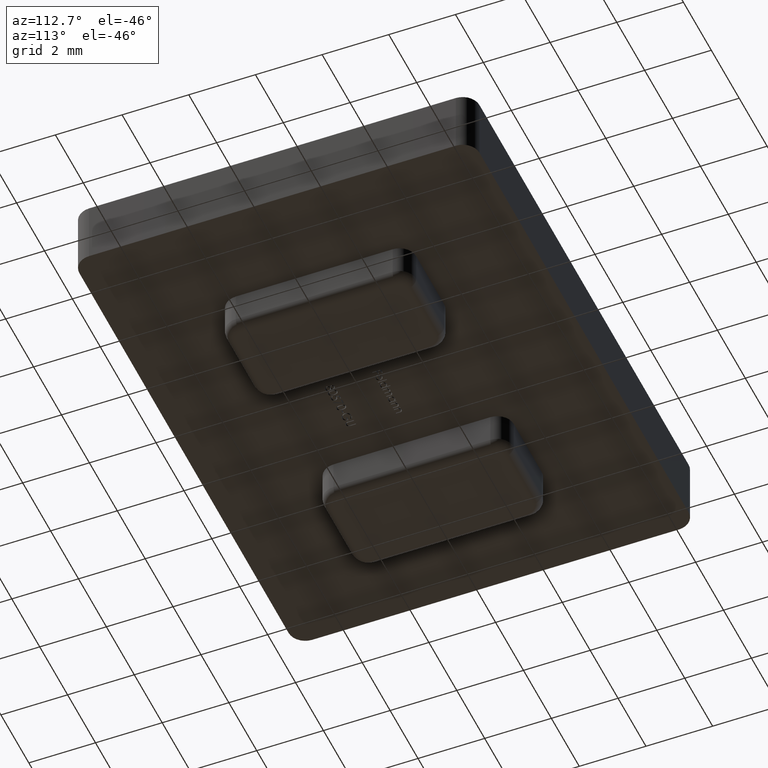
[diagram: clean part render]
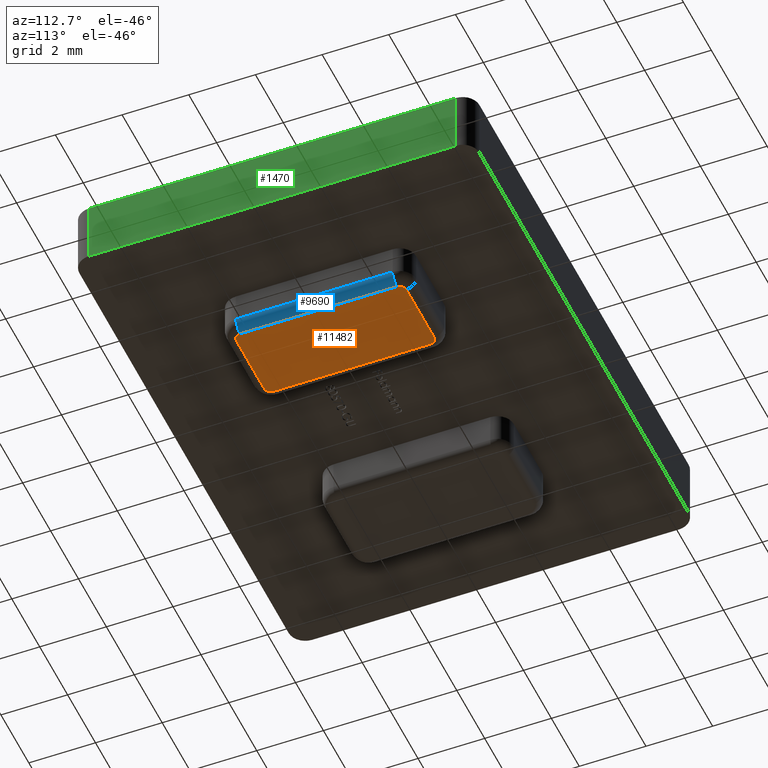
[diagram: same view with three faces highlighted in distinct colors, each labeled with its STEP entity id]
A machine part, auxiliary view with three faces highlighted in distinct colors.
Their STEP definitions:

[orange] entity #11482 — the highlighted planar face has unit normal (0, 0, -1).
#98 = EDGE_CURVE ( 'NONE', #12104, #6835, #5290, .T. ) ;
#335 = EDGE_CURVE ( 'NONE', #10522, #11056, #3748, .T. ) ;
#530 = CARTESIAN_POINT ( 'NONE',  ( 2.500000000000000000, -2.349999999999999600, -1.200000000000000000 ) ) ;
#936 = DIRECTION ( 'NONE',  ( 0.0000000000000000000, 0.0000000000000000000, -1.000000000000000000 ) ) ;
#1188 = LINE ( 'NONE', #5964, #12472 ) ;
#1249 = ORIENTED_EDGE ( 'NONE', *, *, #6526, .T. ) ;
#1545 = DIRECTION ( 'NONE',  ( 0.0000000000000000000, 0.0000000000000000000, -1.000000000000000000 ) ) ;
#1703 = VERTEX_POINT ( 'NONE', #4426 ) ;
#1711 = EDGE_CURVE ( 'NONE', #9247, #12104, #6130, .T. ) ;
#1778 = AXIS2_PLACEMENT_3D ( 'NONE', #2658, #10201, #3720 ) ;
#1887 = DIRECTION ( 'NONE',  ( -7.608436298143890100E-017, 1.000000000000000000, 0.0000000000000000000 ) ) ;
#2303 = CARTESIAN_POINT ( 'NONE',  ( 4.700000000000000200, -2.350000000000000100, -1.200000000000000000 ) ) ;
#2658 = CARTESIAN_POINT ( 'NONE',  ( 2.499999999999999600, 2.350000000000000100, -1.200000000000000000 ) ) ;
#3090 = CARTESIAN_POINT ( 'NONE',  ( 4.500000000000000900, 2.550000000000000300, -1.200000000000000000 ) ) ;
#3328 = EDGE_CURVE ( 'NONE', #11056, #7797, #10979, .T. ) ;
#3720 = DIRECTION ( 'NONE',  ( -1.000000000000000000, 0.0000000000000000000, 0.0000000000000000000 ) ) ;
#3748 = LINE ( 'NONE', #3990, #4095 ) ;
#3897 = CARTESIAN_POINT ( 'NONE',  ( 2.299999999999999800, 2.350000000000000100, -1.200000000000000000 ) ) ;
#3990 = CARTESIAN_POINT ( 'NONE',  ( 2.299999999999999800, 2.350000000000000100, -1.200000000000000000 ) ) ;
#4041 = EDGE_CURVE ( 'NONE', #6835, #6670, #8442, .T. ) ;
#4095 = VECTOR ( 'NONE', #1887, 1000.000000000000000 ) ;
#4281 = VECTOR ( 'NONE', #8402, 1000.000000000000000 ) ;
#4426 = CARTESIAN_POINT ( 'NONE',  ( 2.500000000000000000, -2.549999999999999800, -1.200000000000000000 ) ) ;
#4653 = ORIENTED_EDGE ( 'NONE', *, *, #3328, .T. ) ;
#4732 = AXIS2_PLACEMENT_3D ( 'NONE', #6504, #8722, #5522 ) ;
#4833 = DIRECTION ( 'NONE',  ( -1.000000000000000000, 0.0000000000000000000, 0.0000000000000000000 ) ) ;
#5290 = LINE ( 'NONE', #2303, #10704 ) ;
#5308 = CIRCLE ( 'NONE', #10187, 0.2000000000000000900 ) ;
#5522 = DIRECTION ( 'NONE',  ( -1.000000000000000000, 0.0000000000000000000, 0.0000000000000000000 ) ) ;
#5835 = DIRECTION ( 'NONE',  ( -1.000000000000000000, 0.0000000000000000000, 0.0000000000000000000 ) ) ;
#5920 = CARTESIAN_POINT ( 'NONE',  ( 2.499999999999999600, 2.550000000000000300, -1.200000000000000000 ) ) ;
#5964 = CARTESIAN_POINT ( 'NONE',  ( 2.500000000000000000, -2.549999999999999800, -1.200000000000000000 ) ) ;
#6130 = CIRCLE ( 'NONE', #4732, 0.1999999999999996500 ) ;
#6238 = CARTESIAN_POINT ( 'NONE',  ( 4.500000000000000900, 2.550000000000000300, -1.200000000000000000 ) ) ;
#6325 = LINE ( 'NONE', #6238, #4281 ) ;
#6504 = CARTESIAN_POINT ( 'NONE',  ( 4.500000000000000900, 2.349999999999999600, -1.200000000000000000 ) ) ;
#6526 = EDGE_CURVE ( 'NONE', #6670, #1703, #1188, .T. ) ;
#6670 = VERTEX_POINT ( 'NONE', #8503 ) ;
#6835 = VERTEX_POINT ( 'NONE', #11020 ) ;
#6920 = CARTESIAN_POINT ( 'NONE',  ( 0.0000000000000000000, 0.0000000000000000000, -1.200000000000000000 ) ) ;
#7042 = EDGE_LOOP ( 'NONE', ( #1249, #7216, #7665, #4653, #12068, #11419, #9981, #8330 ) ) ;
#7216 = ORIENTED_EDGE ( 'NONE', *, *, #12327, .T. ) ;
#7597 = CARTESIAN_POINT ( 'NONE',  ( 2.300000000000000300, -2.349999999999999600, -1.200000000000000000 ) ) ;
#7665 = ORIENTED_EDGE ( 'NONE', *, *, #335, .T. ) ;
#7797 = VERTEX_POINT ( 'NONE', #5920 ) ;
#7874 = PLANE ( 'NONE',  #7990 ) ;
#7990 = AXIS2_PLACEMENT_3D ( 'NONE', #6920, #1545, #9005 ) ;
#8330 = ORIENTED_EDGE ( 'NONE', *, *, #4041, .T. ) ;
#8402 = DIRECTION ( 'NONE',  ( 1.000000000000000000, -1.445602896647339200E-016, 0.0000000000000000000 ) ) ;
#8442 = CIRCLE ( 'NONE', #9791, 0.1999999999999996500 ) ;
#8503 = CARTESIAN_POINT ( 'NONE',  ( 4.500000000000000900, -2.549999999999999800, -1.200000000000000000 ) ) ;
#8533 = CARTESIAN_POINT ( 'NONE',  ( 4.500000000000000900, -2.349999999999999600, -1.200000000000000000 ) ) ;
#8722 = DIRECTION ( 'NONE',  ( 0.0000000000000000000, 0.0000000000000000000, -1.000000000000000000 ) ) ;
#9005 = DIRECTION ( 'NONE',  ( -1.000000000000000000, 0.0000000000000000000, -0.0000000000000000000 ) ) ;
#9247 = VERTEX_POINT ( 'NONE', #3090 ) ;
#9791 = AXIS2_PLACEMENT_3D ( 'NONE', #8533, #936, #10824 ) ;
#9981 = ORIENTED_EDGE ( 'NONE', *, *, #98, .T. ) ;
#10187 = AXIS2_PLACEMENT_3D ( 'NONE', #530, #12476, #4833 ) ;
#10201 = DIRECTION ( 'NONE',  ( 0.0000000000000000000, 0.0000000000000000000, -1.000000000000000000 ) ) ;
#10522 = VERTEX_POINT ( 'NONE', #7597 ) ;
#10704 = VECTOR ( 'NONE', #10934, 1000.000000000000000 ) ;
#10824 = DIRECTION ( 'NONE',  ( -1.000000000000000000, 0.0000000000000000000, 0.0000000000000000000 ) ) ;
#10934 = DIRECTION ( 'NONE',  ( 0.0000000000000000000, -1.000000000000000000, 0.0000000000000000000 ) ) ;
#10979 = CIRCLE ( 'NONE', #1778, 0.2000000000000000900 ) ;
#11020 = CARTESIAN_POINT ( 'NONE',  ( 4.700000000000000200, -2.349999999999999600, -1.200000000000000000 ) ) ;
#11056 = VERTEX_POINT ( 'NONE', #3897 ) ;
#11266 = EDGE_CURVE ( 'NONE', #7797, #9247, #6325, .T. ) ;
#11419 = ORIENTED_EDGE ( 'NONE', *, *, #1711, .T. ) ;
#11482 = ADVANCED_FACE ( 'NONE', ( #13437 ), #7874, .T. ) ;
#11749 = CARTESIAN_POINT ( 'NONE',  ( 4.700000000000000200, 2.349999999999999600, -1.200000000000000000 ) ) ;
#12068 = ORIENTED_EDGE ( 'NONE', *, *, #11266, .T. ) ;
#12104 = VERTEX_POINT ( 'NONE', #11749 ) ;
#12327 = EDGE_CURVE ( 'NONE', #1703, #10522, #5308, .T. ) ;
#12472 = VECTOR ( 'NONE', #5835, 1000.000000000000000 ) ;
#12476 = DIRECTION ( 'NONE',  ( 0.0000000000000000000, 0.0000000000000000000, -1.000000000000000000 ) ) ;
#13437 = FACE_OUTER_BOUND ( 'NONE', #7042, .T. ) ;

[blue] entity #9690 — the highlighted cylindrical surface (edge-blend (fillet) strip) has radius 0.3 mm, axis along (0, 1, 0).
#98 = EDGE_CURVE ( 'NONE', #12104, #6835, #5290, .T. ) ;
#647 = FACE_OUTER_BOUND ( 'NONE', #3596, .T. ) ;
#796 = ORIENTED_EDGE ( 'NONE', *, *, #3409, .F. ) ;
#2196 = DIRECTION ( 'NONE',  ( -0.0000000000000000000, 1.000000000000000000, -0.0000000000000000000 ) ) ;
#2202 = CARTESIAN_POINT ( 'NONE',  ( 4.700000000000000200, -2.349999999999999600, -0.9000000000000000200 ) ) ;
#2303 = CARTESIAN_POINT ( 'NONE',  ( 4.700000000000000200, -2.350000000000000100, -1.200000000000000000 ) ) ;
#2440 = AXIS2_PLACEMENT_3D ( 'NONE', #6081, #3973, #7107 ) ;
#2941 = CIRCLE ( 'NONE', #13086, 0.2999999999999999300 ) ;
#3409 = EDGE_CURVE ( 'NONE', #6835, #13625, #10484, .T. ) ;
#3596 = EDGE_LOOP ( 'NONE', ( #6671, #9696, #796, #12224 ) ) ;
#3892 = CARTESIAN_POINT ( 'NONE',  ( 5.000000000000000000, 2.349999999999999600, -0.9000000000000000200 ) ) ;
#3973 = DIRECTION ( 'NONE',  ( 0.0000000000000000000, 1.000000000000000000, 0.0000000000000000000 ) ) ;
#4172 = DIRECTION ( 'NONE',  ( -1.445602896647339700E-015, -1.000000000000000000, -0.0000000000000000000 ) ) ;
#4206 = LINE ( 'NONE', #10926, #6400 ) ;
#4893 = DIRECTION ( 'NONE',  ( 0.0000000000000000000, -1.000000000000000000, 0.0000000000000000000 ) ) ;
#5290 = LINE ( 'NONE', #2303, #10704 ) ;
#5548 = EDGE_CURVE ( 'NONE', #13625, #6530, #4206, .T. ) ;
#6005 = CYLINDRICAL_SURFACE ( 'NONE', #2440, 0.2999999999999999300 ) ;
#6081 = CARTESIAN_POINT ( 'NONE',  ( 4.700000000000000200, 0.0000000000000000000, -0.9000000000000000200 ) ) ;
#6400 = VECTOR ( 'NONE', #2196, 1000.000000000000000 ) ;
#6530 = VERTEX_POINT ( 'NONE', #3892 ) ;
#6671 = ORIENTED_EDGE ( 'NONE', *, *, #12913, .T. ) ;
#6835 = VERTEX_POINT ( 'NONE', #11020 ) ;
#7107 = DIRECTION ( 'NONE',  ( 0.0000000000000000000, 0.0000000000000000000, 1.000000000000000000 ) ) ;
#7372 = DIRECTION ( 'NONE',  ( 1.000000000000000000, -1.445602896647339500E-015, 0.0000000000000000000 ) ) ;
#9149 = CARTESIAN_POINT ( 'NONE',  ( 5.000000000000000000, -2.350000000000000100, -0.9000000000000000200 ) ) ;
#9269 = CARTESIAN_POINT ( 'NONE',  ( 4.700000000000000200, 2.349999999999999600, -0.9000000000000000200 ) ) ;
#9690 = ADVANCED_FACE ( 'NONE', ( #647 ), #6005, .T. ) ;
#9696 = ORIENTED_EDGE ( 'NONE', *, *, #5548, .F. ) ;
#10484 = CIRCLE ( 'NONE', #11712, 0.2999999999999999300 ) ;
#10704 = VECTOR ( 'NONE', #10934, 1000.000000000000000 ) ;
#10926 = CARTESIAN_POINT ( 'NONE',  ( 5.000000000000000000, 2.349999999999999600, -0.9000000000000000200 ) ) ;
#10934 = DIRECTION ( 'NONE',  ( 0.0000000000000000000, -1.000000000000000000, 0.0000000000000000000 ) ) ;
#11020 = CARTESIAN_POINT ( 'NONE',  ( 4.700000000000000200, -2.349999999999999600, -1.200000000000000000 ) ) ;
#11712 = AXIS2_PLACEMENT_3D ( 'NONE', #2202, #4172, #7372 ) ;
#11749 = CARTESIAN_POINT ( 'NONE',  ( 4.700000000000000200, 2.349999999999999600, -1.200000000000000000 ) ) ;
#12104 = VERTEX_POINT ( 'NONE', #11749 ) ;
#12224 = ORIENTED_EDGE ( 'NONE', *, *, #98, .F. ) ;
#12913 = EDGE_CURVE ( 'NONE', #12104, #6530, #2941, .T. ) ;
#13086 = AXIS2_PLACEMENT_3D ( 'NONE', #9269, #4893, #13737 ) ;
#13625 = VERTEX_POINT ( 'NONE', #9149 ) ;
#13737 = DIRECTION ( 'NONE',  ( 0.0000000000000000000, 0.0000000000000000000, -1.000000000000000000 ) ) ;

[green] entity #1470 — the highlighted planar face has unit normal (-1, 0, 0).
#1133 = VECTOR ( 'NONE', #4637, 1000.000000000000000 ) ;
#1242 = FACE_OUTER_BOUND ( 'NONE', #1836, .T. ) ;
#1470 = ADVANCED_FACE ( 'NONE', ( #1242 ), #13663, .F. ) ;
#1693 = EDGE_CURVE ( 'NONE', #10721, #5891, #7293, .T. ) ;
#1774 = DIRECTION ( 'NONE',  ( -0.0000000000000000000, 1.000000000000000000, -0.0000000000000000000 ) ) ;
#1836 = EDGE_LOOP ( 'NONE', ( #10373, #5779, #4711, #10806 ) ) ;
#2899 = DIRECTION ( 'NONE',  ( -1.000000000000000000, 0.0000000000000000000, 0.0000000000000000000 ) ) ;
#2985 = CARTESIAN_POINT ( 'NONE',  ( 8.000000000000001800, 6.000000000000000000, 0.0000000000000000000 ) ) ;
#3081 = VECTOR ( 'NONE', #3261, 1000.000000000000000 ) ;
#3163 = CARTESIAN_POINT ( 'NONE',  ( 8.000000000000001800, 5.500000000000000900, 1.899999999999999900 ) ) ;
#3261 = DIRECTION ( 'NONE',  ( -0.0000000000000000000, 1.000000000000000000, -0.0000000000000000000 ) ) ;
#3679 = VECTOR ( 'NONE', #1774, 1000.000000000000000 ) ;
#3909 = VERTEX_POINT ( 'NONE', #11530 ) ;
#3979 = LINE ( 'NONE', #6927, #1133 ) ;
#4637 = DIRECTION ( 'NONE',  ( -0.0000000000000000000, -0.0000000000000000000, 1.000000000000000000 ) ) ;
#4711 = ORIENTED_EDGE ( 'NONE', *, *, #7052, .T. ) ;
#5779 = ORIENTED_EDGE ( 'NONE', *, *, #7008, .T. ) ;
#5891 = VERTEX_POINT ( 'NONE', #3163 ) ;
#6046 = LINE ( 'NONE', #10495, #13329 ) ;
#6927 = CARTESIAN_POINT ( 'NONE',  ( 8.000000000000001800, 5.500000000000000900, 1.899999999999999900 ) ) ;
#7008 = EDGE_CURVE ( 'NONE', #10721, #13588, #6046, .T. ) ;
#7052 = EDGE_CURVE ( 'NONE', #13588, #3909, #10108, .T. ) ;
#7293 = LINE ( 'NONE', #9711, #3081 ) ;
#8059 = DIRECTION ( 'NONE',  ( 0.0000000000000000000, 0.0000000000000000000, 1.000000000000000000 ) ) ;
#8150 = CARTESIAN_POINT ( 'NONE',  ( 8.000000000000001800, -5.499999999999998200, 0.0000000000000000000 ) ) ;
#8197 = CARTESIAN_POINT ( 'NONE',  ( 8.000000000000001800, -5.499999999999998200, 1.899999999999999900 ) ) ;
#9328 = AXIS2_PLACEMENT_3D ( 'NONE', #12576, #2899, #8059 ) ;
#9711 = CARTESIAN_POINT ( 'NONE',  ( 8.000000000000001800, 6.000000000000000000, 1.899999999999999900 ) ) ;
#10108 = LINE ( 'NONE', #2985, #3679 ) ;
#10373 = ORIENTED_EDGE ( 'NONE', *, *, #1693, .F. ) ;
#10495 = CARTESIAN_POINT ( 'NONE',  ( 8.000000000000001800, -5.499999999999998200, 1.899999999999999900 ) ) ;
#10699 = EDGE_CURVE ( 'NONE', #3909, #5891, #3979, .T. ) ;
#10721 = VERTEX_POINT ( 'NONE', #8197 ) ;
#10806 = ORIENTED_EDGE ( 'NONE', *, *, #10699, .T. ) ;
#11530 = CARTESIAN_POINT ( 'NONE',  ( 8.000000000000001800, 5.500000000000000900, 0.0000000000000000000 ) ) ;
#11576 = DIRECTION ( 'NONE',  ( 0.0000000000000000000, 0.0000000000000000000, -1.000000000000000000 ) ) ;
#12576 = CARTESIAN_POINT ( 'NONE',  ( 8.000000000000001800, 6.000000000000000000, 1.899999999999999900 ) ) ;
#13329 = VECTOR ( 'NONE', #11576, 1000.000000000000000 ) ;
#13588 = VERTEX_POINT ( 'NONE', #8150 ) ;
#13663 = PLANE ( 'NONE',  #9328 ) ;